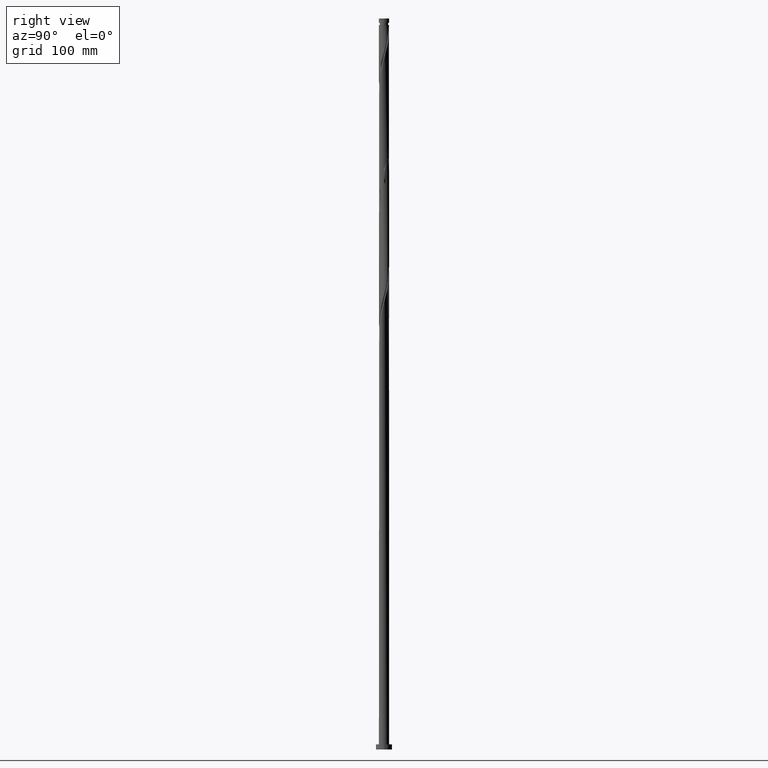
[diagram: clean part render]
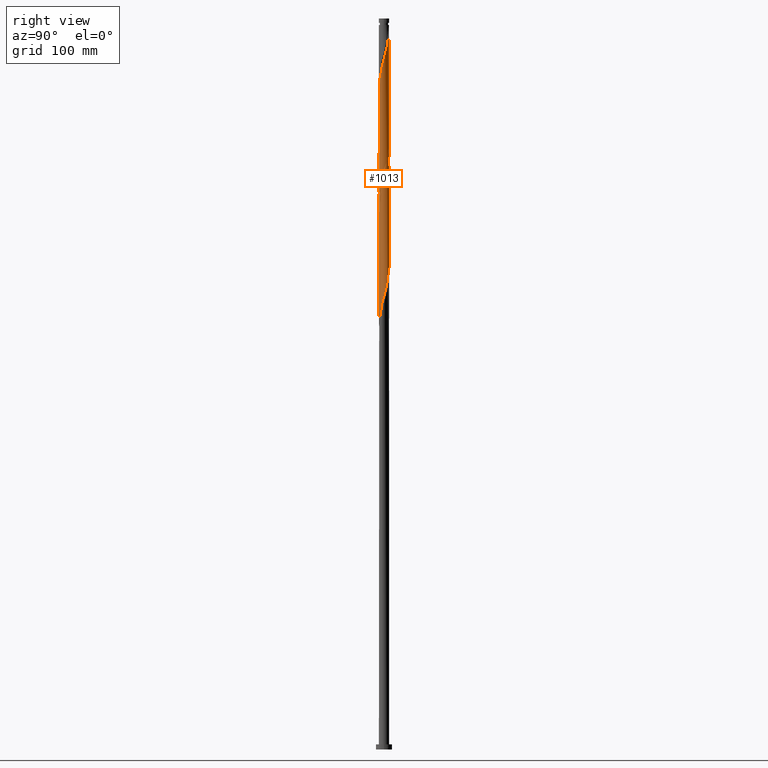
[diagram: same view with one face highlighted and labeled with its STEP entity id]
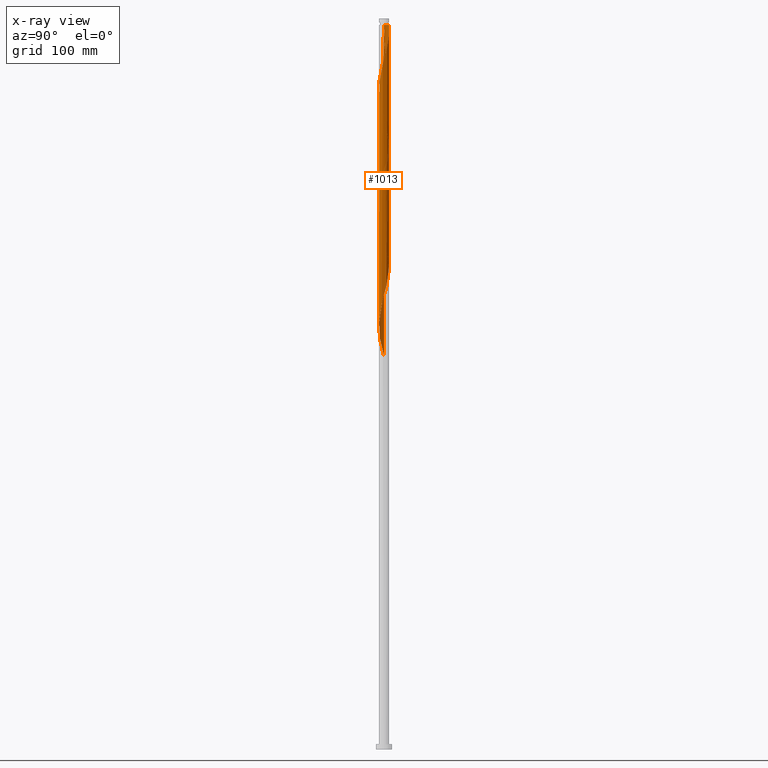
[diagram: x-ray of the same camera — body ghosted, the highlighted face saturated]
A machine part, right view. The second image highlights one B-rep face of the part: STEP entity #1013.
The next image is the same camera in x-ray: the body ghosted, the highlighted face saturated — about 0% of this face is hidden behind the body in this view.
In plain terms, the highlighted cylindrical surface (bore or boss wall) has radius 7 mm, axis along (-0, -0, -1).
Its self-contained STEP definition (entity closure, byte-faithful):
#1 = CARTESIAN_POINT ( 'NONE',  ( -6.999999999999999112, -8.657164945486632062E-15, 538.1220534003106195 ) ) ;
#7 = EDGE_CURVE ( 'NONE', #662, #588, #1312, .T. ) ;
#12 = VECTOR ( 'NONE', #1970, 1000.000000000000000 ) ;
#14 = CARTESIAN_POINT ( 'NONE',  ( -3.406482524289222269, 6.139982148663825079, 843.2254418615293616 ) ) ;
#26 = CARTESIAN_POINT ( 'NONE',  ( 1.342398573274901308, -6.892131023469289630, 584.8921085281959904 ) ) ;
#36 = DIRECTION ( 'NONE',  ( -1.000000000000000000, 0.000000000000000000, 0.000000000000000000 ) ) ;
#38 = EDGE_CURVE ( 'NONE', #1116, #197, #1712, .T. ) ;
#39 = CARTESIAN_POINT ( 'NONE',  ( 5.159153274858735649, 4.731082062965551671, 807.8087751948627329 ) ) ;
#43 = CARTESIAN_POINT ( 'NONE',  ( 1.342398573274901308, -6.892131023469289630, 751.5587751948627329 ) ) ;
#50 = CARTESIAN_POINT ( 'NONE',  ( 3.444661581381041504, 6.093792463627019096, 816.1421085281958767 ) ) ;
#59 = CARTESIAN_POINT ( 'NONE',  ( 2.965069713458600376, -6.364893209514909778, 914.0587751948625055 ) ) ;
#63 = CARTESIAN_POINT ( 'NONE',  ( 4.786809041376008267, 5.137116231466756666, 809.8921085281958767 ) ) ;
#71 = CARTESIAN_POINT ( 'NONE',  ( -2.905260386594000099, -6.368631099858730771, 891.1421085281961041 ) ) ;
#79 = CARTESIAN_POINT ( 'NONE',  ( 6.750369906602914583, -1.932876120766165107, 780.7254418615291343 ) ) ;
#89 = CARTESIAN_POINT ( 'NONE',  ( 2.905260386593992994, -6.368631099858721889, 757.8087751948626192 ) ) ;
#98 = CARTESIAN_POINT ( 'NONE',  ( 7.000000000000000000, 8.572527594031473190E-16, 991.1421085281959904 ) ) ;
#100 = CARTESIAN_POINT ( 'NONE',  ( -5.822691717739142625, 3.924253449303483077, 689.0587751948627329 ) ) ;
#108 = CARTESIAN_POINT ( 'NONE',  ( -6.954702939942483120, -0.7950515814432361772, 707.8087751948625055 ) ) ;
#121 = CARTESIAN_POINT ( 'NONE',  ( 6.750369906602914583, -1.932876120766165107, 614.0587751948626192 ) ) ;
#128 = VECTOR ( 'NONE', #603, 1000.000000000000000 ) ;
#133 = CARTESIAN_POINT ( 'NONE',  ( 0.8530887031323963754, 6.969630093397080728, 659.8921085281958767 ) ) ;
#143 = CARTESIAN_POINT ( 'NONE',  ( 4.786809041376015372, -5.137116231466765548, 922.3921085281959904 ) ) ;
#145 = CARTESIAN_POINT ( 'NONE',  ( -0.8530887031323972636, -6.969630093397078952, 743.2254418615292479 ) ) ;
#149 = ORIENTED_EDGE ( 'NONE', *, *, #944, .F. ) ;
#157 = CARTESIAN_POINT ( 'NONE',  ( 6.993452474906391991, 0.3026920567604106105, 945.3087751948628465 ) ) ;
#158 = CARTESIAN_POINT ( 'NONE',  ( -4.355531245339747670, -5.479903974602947869, 561.9754418615292479 ) ) ;
#168 = CARTESIAN_POINT ( 'NONE',  ( 4.731082062965563217, 5.159153274858740090, 966.1421085281959904 ) ) ;
#170 = CARTESIAN_POINT ( 'NONE',  ( -2.448972917112379744, -6.557631558058904631, 570.3087751948625055 ) ) ;
#180 = CARTESIAN_POINT ( 'NONE',  ( 6.860000000000009202, 1.392982411949278854, 949.4754418615294753 ) ) ;
#182 = CARTESIAN_POINT ( 'NONE',  ( -6.969630093397078952, 0.8530887031323967085, 868.2254418615292479 ) ) ;
#185 = EDGE_CURVE ( 'NONE', #588, #1044, #1902, .T. ) ;
#193 = CARTESIAN_POINT ( 'NONE',  ( -4.786809041376008267, -5.137116231466755778, 559.8921085281961041 ) ) ;
#197 = VERTEX_POINT ( 'NONE', #719 ) ;
#205 = CARTESIAN_POINT ( 'NONE',  ( 6.093792463627019096, -3.444661581381041504, 607.8087751948626192 ) ) ;
#217 = CARTESIAN_POINT ( 'NONE',  ( 4.355531245339749447, 5.479903974602947869, 811.9754418615291343 ) ) ;
#222 = CARTESIAN_POINT ( 'NONE',  ( 1.873218411086832624, -6.744705537261454609, 753.6421085281959904 ) ) ;
#236 = CARTESIAN_POINT ( 'NONE',  ( 1.932876120766161998, -6.750369906602926129, 909.8921085281957630 ) ) ;
#242 = DIRECTION ( 'NONE',  ( -1.000000000000000000, 0.000000000000000000, 0.000000000000000000 ) ) ;
#251 = CARTESIAN_POINT ( 'NONE',  ( -6.999999999999891642, 0.000000000000000000, 991.1421085281959904 ) ) ;
#253 = CARTESIAN_POINT ( 'NONE',  ( 0.000000000000000000, 0.000000000000000000, 991.1421085281959904 ) ) ;
#255 = EDGE_CURVE ( 'NONE', #372, #588, #2142, .T. ) ;
#258 = CARTESIAN_POINT ( 'NONE',  ( -5.479903974602959416, -4.355531245339752111, 878.6421085281959904 ) ) ;
#261 = CARTESIAN_POINT ( 'NONE',  ( 0.8530887031323963754, 6.969630093397080728, 826.5587751948626192 ) ) ;
#265 = CARTESIAN_POINT ( 'NONE',  ( 4.731082062965551671, -5.159153274858735649, 766.1421085281958767 ) ) ;
#269 = CARTESIAN_POINT ( 'NONE',  ( -2.404038248898770824, -6.597280051053632022, 893.2254418615294753 ) ) ;
#275 = CARTESIAN_POINT ( 'NONE',  ( 3.444661581381041504, 6.093792463627019096, 649.4754418615291343 ) ) ;
#285 = CARTESIAN_POINT ( 'NONE',  ( 6.139982148663825079, 3.406482524289224934, 634.8921085281959904 ) ) ;
#296 = CARTESIAN_POINT ( 'NONE',  ( 6.993452474906378669, -0.3026920567604138301, 620.3087751948625055 ) ) ;
#307 = CARTESIAN_POINT ( 'NONE',  ( -6.744705537261454609, -1.873218411086833513, 711.9754418615291343 ) ) ;
#319 = CARTESIAN_POINT ( 'NONE',  ( -3.865765209376786249, 5.835739828502643611, 678.6421085281957630 ) ) ;
#333 = CARTESIAN_POINT ( 'NONE',  ( -1.932876120766162220, -6.750369906602915471, 572.3921085281958767 ) ) ;
#343 = CARTESIAN_POINT ( 'NONE',  ( -5.479903974602947869, 4.355531245339746782, 853.6421085281959904 ) ) ;
#355 = CARTESIAN_POINT ( 'NONE',  ( -0.8530887031323972636, -6.969630093397078952, 576.5587751948626192 ) ) ;
#368 = CARTESIAN_POINT ( 'NONE',  ( -5.159153274858735649, -4.731082062965551671, 557.8087751948625055 ) ) ;
#372 = VERTEX_POINT ( 'NONE', #1867 ) ;
#380 = CARTESIAN_POINT ( 'NONE',  ( 2.404038248898763719, -6.597280051053624028, 589.0587751948626192 ) ) ;
#392 = CARTESIAN_POINT ( 'NONE',  ( 1.392982411949280408, 6.859999999999999432, 824.4754418615291343 ) ) ;
#403 = CARTESIAN_POINT ( 'NONE',  ( 3.924253449303487518, 5.822691717739139960, 814.0587751948628465 ) ) ;
#413 = CARTESIAN_POINT ( 'NONE',  ( 1.392982411949279298, -6.860000000000009202, 907.8087751948627329 ) ) ;
#417 = FACE_OUTER_BOUND ( 'NONE', #2144, .T. ) ;
#419 = CARTESIAN_POINT ( 'NONE',  ( 1.932876120766165773, 6.750369906602914583, 822.3921085281959904 ) ) ;
#429 = CARTESIAN_POINT ( 'NONE',  ( 5.531497508341465696, 4.325047894464346676, 805.7254418615293616 ) ) ;
#433 = CARTESIAN_POINT ( 'NONE',  ( 6.999999999999999112, 6.522726002030445257E-15, 788.1220534003107332 ) ) ;
#439 = CARTESIAN_POINT ( 'NONE',  ( 2.448972917112380632, 6.557631558058904631, 820.3087751948625055 ) ) ;
#442 = CARTESIAN_POINT ( 'NONE',  ( 6.093792463627019096, -3.444661581381041504, 774.4754418615292479 ) ) ;
#452 = VECTOR ( 'NONE', #921, 1000.000000000000000 ) ;
#453 = ORIENTED_EDGE ( 'NONE', *, *, #1653, .T. ) ;
#463 = CARTESIAN_POINT ( 'NONE',  ( -1.873218411086833513, 6.744705537261454609, 670.3087751948625055 ) ) ;
#466 = AXIS2_PLACEMENT_3D ( 'NONE', #2197, #1111, #36 ) ;
#474 = CARTESIAN_POINT ( 'NONE',  ( 6.954702939942483120, 0.7950515814432355111, 624.4754418615292479 ) ) ;
#484 = CARTESIAN_POINT ( 'NONE',  ( -0.3026920567604101664, 6.993452474906391991, 986.9754418615293616 ) ) ;
#485 = CARTESIAN_POINT ( 'NONE',  ( -6.364893209514898231, 2.965069713458598599, 693.2254418615292479 ) ) ;
#494 = CARTESIAN_POINT ( 'NONE',  ( 5.835739828502643611, 3.865765209376785361, 636.9754418615291343 ) ) ;
#506 = CARTESIAN_POINT ( 'NONE',  ( -3.444661581381041504, -6.093792463627019096, 566.1421085281959904 ) ) ;
#515 = CARTESIAN_POINT ( 'NONE',  ( 7.017274856415689044, -0.2477045896115713242, 943.2254418615293616 ) ) ;
#518 = CARTESIAN_POINT ( 'NONE',  ( -6.993452474906378669, 0.3026920567604127754, 870.3087751948626192 ) ) ;
#528 = CARTESIAN_POINT ( 'NONE',  ( 3.406482524289233371, 6.139982148663830408, 972.3921085281957630 ) ) ;
#530 = CARTESIAN_POINT ( 'NONE',  ( 6.557631558058904631, -2.448972917112380632, 611.9754418615291343 ) ) ;
#542 = CARTESIAN_POINT ( 'NONE',  ( -6.368631099858721889, -2.905260386593992994, 549.4754418615292479 ) ) ;
#552 = CARTESIAN_POINT ( 'NONE',  ( -5.822691717739142625, 3.924253449303483077, 855.7254418615292479 ) ) ;
#588 = VERTEX_POINT ( 'NONE', #1135 ) ;
#593 = CARTESIAN_POINT ( 'NONE',  ( 3.924253449303487518, -5.822691717739153283, 918.2254418615293616 ) ) ;
#603 = DIRECTION ( 'NONE',  ( -0.000000000000000000, -0.000000000000000000, -1.000000000000000000 ) ) ;
#625 = CARTESIAN_POINT ( 'NONE',  ( 5.822691717739139960, -3.924253449303487518, 772.3921085281961041 ) ) ;
#637 = CARTESIAN_POINT ( 'NONE',  ( -1.932876120766162220, -6.750369906602915471, 739.0587751948627329 ) ) ;
#646 = CARTESIAN_POINT ( 'NONE',  ( -6.093792463627019096, 3.444661581381040172, 691.1421085281957630 ) ) ;
#658 = CARTESIAN_POINT ( 'NONE',  ( -0.3026920567604134416, -6.993452474906378669, 745.3087751948625055 ) ) ;
#662 = VERTEX_POINT ( 'NONE', #98 ) ;
#669 = CARTESIAN_POINT ( 'NONE',  ( 6.969630093397093162, 0.8530887031323923786, 947.3921085281961041 ) ) ;
#671 = CARTESIAN_POINT ( 'NONE',  ( -0.2477045896115717960, 7.017274856415677498, 664.0587751948625055 ) ) ;
#683 = CARTESIAN_POINT ( 'NONE',  ( -6.368631099858721889, -2.905260386593992994, 716.1421085281958767 ) ) ;
#686 = CARTESIAN_POINT ( 'NONE',  ( -7.000000000000000000, 0.000000000000000000, 1000.000000000000000 ) ) ;
#695 = CARTESIAN_POINT ( 'NONE',  ( 3.865765209376795575, 5.835739828502651605, 970.3087751948627329 ) ) ;
#699 = CARTESIAN_POINT ( 'NONE',  ( -7.000000000000012434, -1.820989867843727658E-15, 860.8288303227481038 ) ) ;
#708 = CARTESIAN_POINT ( 'NONE',  ( 5.137116231466758443, -4.786809041376008267, 601.5587751948625055 ) ) ;
#719 = CARTESIAN_POINT ( 'NONE',  ( -1.392982411949267973, 6.859999999999908837, 991.1421085281959904 ) ) ;
#732 = CARTESIAN_POINT ( 'NONE',  ( -2.905260386593994326, 6.368631099858721889, 841.1421085281958767 ) ) ;
#742 = CARTESIAN_POINT ( 'NONE',  ( 0.2477045896115707968, -7.017274856415678386, 580.7254418615292479 ) ) ;
#755 = CARTESIAN_POINT ( 'NONE',  ( 6.368631099858721889, 2.905260386593992550, 799.4754418615293616 ) ) ;
#759 = CARTESIAN_POINT ( 'NONE',  ( 0.7950515814432359551, -6.954702939942483120, 749.4754418615290206 ) ) ;
#776 = CARTESIAN_POINT ( 'NONE',  ( 3.444661581381044169, -6.093792463627032419, 916.1421085281961041 ) ) ;
#788 = CARTESIAN_POINT ( 'NONE',  ( -1.342398573274906193, -6.892131023469297624, 897.3921085281959904 ) ) ;
#800 = CARTESIAN_POINT ( 'NONE',  ( -4.325047894464358222, -5.531497508341469249, 884.8921085281959904 ) ) ;
#808 = CARTESIAN_POINT ( 'NONE',  ( 2.404038248898763719, -6.597280051053624028, 755.7254418615294753 ) ) ;
#812 = CARTESIAN_POINT ( 'NONE',  ( 0.3026920567604110546, -6.993452474906390215, 903.6421085281957630 ) ) ;
#817 = CARTESIAN_POINT ( 'NONE',  ( 4.786809041376008267, 5.137116231466756666, 643.2254418615291343 ) ) ;
#827 = CARTESIAN_POINT ( 'NONE',  ( -2.965069713458598599, -6.364893209514898231, 734.8921085281959904 ) ) ;
#841 = CARTESIAN_POINT ( 'NONE',  ( -5.835739828502642723, -3.865765209376785361, 720.3087751948623918 ) ) ;
#854 = CARTESIAN_POINT ( 'NONE',  ( -2.905260386593994326, 6.368631099858721889, 674.4754418615291343 ) ) ;
#862 = CARTESIAN_POINT ( 'NONE',  ( 6.954702939942493778, -0.7950515814432402850, 941.1421085281958767 ) ) ;
#864 = CARTESIAN_POINT ( 'NONE',  ( -3.444661581381041504, -6.093792463627019096, 732.8087751948625055 ) ) ;
#875 = CARTESIAN_POINT ( 'NONE',  ( 5.137116231466768212, 4.786809041376013596, 964.0587751948625055 ) ) ;
#876 = CARTESIAN_POINT ( 'NONE',  ( -0.3026920567604134416, -6.993452474906378669, 578.6421085281959904 ) ) ;
#879 = CARTESIAN_POINT ( 'NONE',  ( -6.557631558058917953, -2.448972917112382408, 870.3087751948625055 ) ) ;
#883 = AXIS2_PLACEMENT_3D ( 'NONE', #253, #1323, #242 ) ;
#887 = CARTESIAN_POINT ( 'NONE',  ( 5.159153274858740978, -4.731082062965561441, 924.4754418615294753 ) ) ;
#889 = CARTESIAN_POINT ( 'NONE',  ( -6.954702939942483120, -0.7950515814432361772, 541.1421085281958767 ) ) ;
#899 = CARTESIAN_POINT ( 'NONE',  ( 6.364893209514898231, -2.965069713458595935, 609.8921085281959904 ) ) ;
#911 = CARTESIAN_POINT ( 'NONE',  ( -4.325047894464350229, 5.531497508341461256, 847.3921085281957630 ) ) ;
#917 = EDGE_CURVE ( 'NONE', #1116, #372, #2103, .T. ) ;
#921 = DIRECTION ( 'NONE',  ( -0.000000000000000000, -0.000000000000000000, -1.000000000000000000 ) ) ;
#924 = CARTESIAN_POINT ( 'NONE',  ( 4.325047894464346676, -5.531497508341465696, 597.3921085281957630 ) ) ;
#944 = EDGE_CURVE ( 'NONE', #1256, #197, #1496, .T. ) ;
#957 = CARTESIAN_POINT ( 'NONE',  ( -0.7950515814432369543, 6.954702939942482232, 832.8087751948626192 ) ) ;
#974 = CARTESIAN_POINT ( 'NONE',  ( -1.873218411086838175, -6.744705537261463490, 895.3087751948626192 ) ) ;
#982 = CARTESIAN_POINT ( 'NONE',  ( 4.325047894464346676, -5.531497508341465696, 764.0587751948626192 ) ) ;
#993 = CARTESIAN_POINT ( 'NONE',  ( 2.965069713458596823, 6.364893209514898231, 651.5587751948625055 ) ) ;
#998 = CARTESIAN_POINT ( 'NONE',  ( 0.8530887031323959313, -6.969630093397091386, 905.7254418615291343 ) ) ;
#1002 = CARTESIAN_POINT ( 'NONE',  ( 6.597280051053624028, 2.404038248898761498, 630.7254418615295890 ) ) ;
#1013 = ADVANCED_FACE ( 'NONE', ( #417 ), #1654, .T. ) ;
#1015 = CARTESIAN_POINT ( 'NONE',  ( 6.969630093397080728, -0.8530887031323943770, 618.2254418615291343 ) ) ;
#1026 = CARTESIAN_POINT ( 'NONE',  ( -1.342398573274902196, 6.892131023469287854, 668.2254418615291343 ) ) ;
#1037 = CARTESIAN_POINT ( 'NONE',  ( 6.139982148663832184, -3.406482524289233371, 930.7254418615293616 ) ) ;
#1040 = CARTESIAN_POINT ( 'NONE',  ( 4.355531245339749447, 5.479903974602947869, 645.3087751948623918 ) ) ;
#1044 = VERTEX_POINT ( 'NONE', #2003 ) ;
#1053 = CARTESIAN_POINT ( 'NONE',  ( -1.392982411949279520, -6.859999999999999432, 574.4754418615290206 ) ) ;
#1062 = CARTESIAN_POINT ( 'NONE',  ( 0.7950515814432359551, -6.954702939942483120, 582.8087751948623918 ) ) ;
#1065 = CARTESIAN_POINT ( 'NONE',  ( -6.860000000000009202, -1.392982411949279520, 866.1421085281962178 ) ) ;
#1074 = CARTESIAN_POINT ( 'NONE',  ( 6.368631099858730771, -2.905260386594000099, 932.8087751948627329 ) ) ;
#1075 = CARTESIAN_POINT ( 'NONE',  ( -6.999999999999999112, 3.806167346722570639E-15, 871.4553867336438771 ) ) ;
#1098 = CARTESIAN_POINT ( 'NONE',  ( -1.342398573274902196, 6.892131023469287854, 834.8921085281959904 ) ) ;
#1111 = DIRECTION ( 'NONE',  ( -0.000000000000000000, -0.000000000000000000, -1.000000000000000000 ) ) ;
#1116 = VERTEX_POINT ( 'NONE', #251 ) ;
#1127 = CARTESIAN_POINT ( 'NONE',  ( 6.859999999999999432, -1.392982411949280186, 782.8087751948625055 ) ) ;
#1135 = CARTESIAN_POINT ( 'NONE',  ( 7.000000000000000000, 6.522726002030445257E-15, 788.1220534003107332 ) ) ;
#1146 = CARTESIAN_POINT ( 'NONE',  ( 0.3026920567604124424, 6.993452474906378669, 828.6421085281959904 ) ) ;
#1162 = CARTESIAN_POINT ( 'NONE',  ( 5.479903974602947869, -4.355531245339747670, 770.3087751948627329 ) ) ;
#1176 = CARTESIAN_POINT ( 'NONE',  ( -6.557631558058906407, 2.448972917112379744, 695.3087751948625055 ) ) ;
#1180 = CARTESIAN_POINT ( 'NONE',  ( -0.7950515814432402850, -6.954702939942493778, 899.4754418615293616 ) ) ;
#1187 = CARTESIAN_POINT ( 'NONE',  ( 6.368631099858721889, 2.905260386593992550, 632.8087751948623918 ) ) ;
#1198 = CARTESIAN_POINT ( 'NONE',  ( 7.017274856415678386, 0.2477045896115672163, 622.3921085281958767 ) ) ;
#1211 = CARTESIAN_POINT ( 'NONE',  ( -0.8530887031323919345, 6.969630093397093162, 989.0587751948627329 ) ) ;
#1212 = CARTESIAN_POINT ( 'NONE',  ( -5.137116231466755778, 4.786809041376008267, 684.8921085281958767 ) ) ;
#1221 = CARTESIAN_POINT ( 'NONE',  ( 6.744705537261454609, 1.873218411086832624, 628.6421085281958767 ) ) ;
#1230 = CARTESIAN_POINT ( 'NONE',  ( 4.355531245339751223, -5.479903974602959416, 920.3087751948626192 ) ) ;
#1233 = CARTESIAN_POINT ( 'NONE',  ( -7.000000000000001776, -0.3988161621250091993, 539.6339419186554096 ) ) ;
#1241 = CARTESIAN_POINT ( 'NONE',  ( -6.364893209514898231, 2.965069713458598599, 859.8921085281959904 ) ) ;
#1244 = CARTESIAN_POINT ( 'NONE',  ( -6.750369906602926129, -1.932876120766162442, 868.2254418615291343 ) ) ;
#1252 = CARTESIAN_POINT ( 'NONE',  ( 0.2477045896115715462, 7.017274856415689044, 984.8921085281961041 ) ) ;
#1253 = CARTESIAN_POINT ( 'NONE',  ( 1.873218411086832624, -6.744705537261454609, 586.9754418615291343 ) ) ;
#1256 = VERTEX_POINT ( 'NONE', #1620 ) ;
#1265 = CARTESIAN_POINT ( 'NONE',  ( -6.859999999999999432, 1.392982411949279076, 866.1421085281959904 ) ) ;
#1274 = CARTESIAN_POINT ( 'NONE',  ( -1.873218411086833513, 6.744705537261454609, 836.9754418615292479 ) ) ;
#1284 = CARTESIAN_POINT ( 'NONE',  ( 6.892131023469286966, 1.342398573274904860, 793.2254418615294753 ) ) ;
#1308 = CARTESIAN_POINT ( 'NONE',  ( 5.835739828502643611, 3.865765209376785361, 803.6421085281961041 ) ) ;
#1312 = LINE ( 'NONE', #1860, #128 ) ;
#1323 = DIRECTION ( 'NONE',  ( -0.000000000000000000, -0.000000000000000000, -1.000000000000000000 ) ) ;
#1336 = CARTESIAN_POINT ( 'NONE',  ( 6.557631558058904631, -2.448972917112380632, 778.6421085281958767 ) ) ;
#1345 = CARTESIAN_POINT ( 'NONE',  ( 3.406482524289221825, -6.139982148663825079, 759.8921085281961041 ) ) ;
#1355 = CARTESIAN_POINT ( 'NONE',  ( -0.7950515814432369543, 6.954702939942482232, 666.1421085281958767 ) ) ;
#1368 = CARTESIAN_POINT ( 'NONE',  ( -4.325047894464350229, 5.531497508341461256, 680.7254418615293616 ) ) ;
#1377 = CARTESIAN_POINT ( 'NONE',  ( -4.786809041376008267, -5.137116231466755778, 726.5587751948625055 ) ) ;
#1389 = CARTESIAN_POINT ( 'NONE',  ( 5.531497508341469249, -4.325047894464359111, 926.5587751948625055 ) ) ;
#1392 = CARTESIAN_POINT ( 'NONE',  ( 2.448972917112380632, 6.557631558058904631, 653.6421085281958767 ) ) ;
#1402 = CARTESIAN_POINT ( 'NONE',  ( 6.750369906602925241, 1.932876120766165329, 951.5587751948627329 ) ) ;
#1405 = CARTESIAN_POINT ( 'NONE',  ( -7.017274856415678386, -0.2477045896115712409, 705.7254418615294753 ) ) ;
#1415 = CARTESIAN_POINT ( 'NONE',  ( 2.905260386594000543, 6.368631099858730771, 974.4754418615292479 ) ) ;
#1416 = CARTESIAN_POINT ( 'NONE',  ( -7.000000000000000000, 0.1514168430644773633, 870.8813744235775403 ) ) ;
#1419 = CARTESIAN_POINT ( 'NONE',  ( -6.993452474906391991, -0.3026920567604114432, 861.9754418615293616 ) ) ;
#1426 = CARTESIAN_POINT ( 'NONE',  ( -7.000000000000000000, 0.000000000000000000, 1000.000000000000000 ) ) ;
#1428 = CARTESIAN_POINT ( 'NONE',  ( 1.342398573274909968, 6.892131023469296736, 980.7254418615292479 ) ) ;
#1429 = CARTESIAN_POINT ( 'NONE',  ( -6.139982148663825079, -3.406482524289222269, 551.5587751948627329 ) ) ;
#1453 = CARTESIAN_POINT ( 'NONE',  ( -6.597280051053624028, -2.404038248898764607, 547.3921085281959904 ) ) ;
#1466 = CARTESIAN_POINT ( 'NONE',  ( -2.965069713458598599, -6.364893209514898231, 568.2254418615294753 ) ) ;
#1477 = CARTESIAN_POINT ( 'NONE',  ( 7.000000000000000000, 0.3988161621250255751, 789.6339419186556370 ) ) ;
#1481 = ORIENTED_EDGE ( 'NONE', *, *, #917, .F. ) ;
#1496 =( BOUNDED_CURVE ( )  B_SPLINE_CURVE ( 2, ( #699, #1790, #1419, #2141, #1065, #1244, #879, #1599, #2316, #2066, #258, #2230, #1720, #800, #1687, #2032, #71, #269, #974, #788, #1180, #2207, #812, #998, #413, #236, #1675, #59, #776, #593, #1230, #143, #887, #1389, #2286, #1037, #1074, #2111, #2298, #2136, #862, #515, #157, #669, #180, #1402, #1771, #1965, #1953, #1784, #1594, #875, #168, #2312, #695, #528, #1415, #1606, #2323, #1428, #2150, #1252, #484, #1211, #1943 ),
 .UNSPECIFIED., .F., .T. ) 
 B_SPLINE_CURVE_WITH_KNOTS ( ( 3, 2, 2, 2, 2, 2, 2, 2, 2, 2, 2, 2, 2, 2, 2, 2, 2, 2, 2, 2, 2, 2, 2, 2, 2, 2, 2, 2, 2, 2, 2, 2, 3 ),
 ( 0.5545283537410735653, 0.5562500000000000222, 0.5625000000000000000, 0.5687499999999999778, 0.5749999999999999556, 0.5812500000000000444, 0.5875000000000000222, 0.5937500000000000000, 0.5999999999999999778, 0.6062499999999999556, 0.6125000000000000444, 0.6187500000000000222, 0.6250000000000000000, 0.6312499999999999778, 0.6374999999999999556, 0.6437500000000000444, 0.6500000000000000222, 0.6562500000000000000, 0.6624999999999999778, 0.6687499999999999556, 0.6750000000000000444, 0.6812500000000000222, 0.6875000000000000000, 0.6937499999999999778, 0.6999999999999999556, 0.7062500000000000444, 0.7125000000000000222, 0.7187500000000000000, 0.7249999999999999778, 0.7312499999999999556, 0.7375000000000000444, 0.7437500000000000222, 0.7500000000000000000 ),
 .UNSPECIFIED. ) 
 CURVE ( )  GEOMETRIC_REPRESENTATION_ITEM ( )  RATIONAL_B_SPLINE_CURVE ( ( 0.9079722749903216261, 0.9083189438770319368, 0.9090909090909780055, 0.9062884852120033363, 0.9090909090909780055, 0.9062884852120033363, 0.9090909090909780055, 0.9062884852120033363, 0.9090909090909780055, 0.9062884852120033363, 0.9090909090909780055, 0.9062884852120033363, 0.9090909090909780055, 0.9062884852120033363, 0.9090909090909780055, 0.9062884852120033363, 0.9090909090909780055, 0.9062884852120033363, 0.9090909090909780055, 0.9062884852120033363, 0.9090909090909780055, 0.9062884852120033363, 0.9090909090909780055, 0.9062884852120033363, 0.9090909090909780055, 0.9062884852120033363, 0.9090909090909780055, 0.9062884852120033363, 0.9090909090909780055, 0.9062884852120033363, 0.9090909090909780055, 0.9062884852120033363, 0.9090909090909780055, 0.9062884852120033363, 0.9090909090909780055, 0.9062884852120033363, 0.9090909090909780055, 0.9062884852120033363, 0.9090909090909780055, 0.9062884852120033363, 0.9090909090909780055, 0.9062884852120033363, 0.9090909090909780055, 0.9062884852120033363, 0.9090909090909780055, 0.9062884852120033363, 0.9090909090909780055, 0.9062884852120033363, 0.9090909090909780055, 0.9062884852120033363, 0.9090909090909780055, 0.9062884852120033363, 0.9090909090909780055, 0.9062884852120033363, 0.9090909090909780055, 0.9062884852120033363, 0.9090909090909780055, 0.9062884852120033363, 0.9090909090909780055, 0.9062884852120033363, 0.9090909090909780055, 0.9062884852120033363, 0.9090909090909780055, 0.9062884852120033363, 0.9090909090909780055 ) ) 
 REPRESENTATION_ITEM ( '' )  );
#1505 = CARTESIAN_POINT ( 'NONE',  ( 7.000000000000000888, -0.1514168430644582397, 787.5480410902445101 ) ) ;
#1535 = CARTESIAN_POINT ( 'NONE',  ( 6.892131023469286966, 1.342398573274904860, 626.5587751948626192 ) ) ;
#1545 = CARTESIAN_POINT ( 'NONE',  ( 1.392982411949280408, 6.859999999999999432, 657.8087751948627329 ) ) ;
#1556 = CARTESIAN_POINT ( 'NONE',  ( -2.404038248898764607, 6.597280051053624028, 672.3921085281959904 ) ) ;
#1568 = CARTESIAN_POINT ( 'NONE',  ( -5.159153274858735649, -4.731082062965551671, 724.4754418615293616 ) ) ;
#1583 = CARTESIAN_POINT ( 'NONE',  ( -5.531497508341463032, -4.325047894464350229, 722.3921085281959904 ) ) ;
#1594 = CARTESIAN_POINT ( 'NONE',  ( 5.479903974602959416, 4.355531245339751223, 961.9754418615294753 ) ) ;
#1596 = CARTESIAN_POINT ( 'NONE',  ( -6.744705537261454609, -1.873218411086833513, 545.3087751948625055 ) ) ;
#1599 = CARTESIAN_POINT ( 'NONE',  ( -6.364893209514909778, -2.965069713458600820, 872.3921085281958767 ) ) ;
#1606 = CARTESIAN_POINT ( 'NONE',  ( 2.404038248898769048, 6.597280051053632022, 976.5587751948627329 ) ) ;
#1608 = CARTESIAN_POINT ( 'NONE',  ( -6.892131023469287854, -1.342398573274901752, 543.2254418615293616 ) ) ;
#1620 = CARTESIAN_POINT ( 'NONE',  ( -7.000000000000012434, -1.820989867843727658E-15, 860.8288303227481038 ) ) ;
#1621 = CARTESIAN_POINT ( 'NONE',  ( 5.479903974602947869, -4.355531245339747670, 603.6421085281957630 ) ) ;
#1632 = CARTESIAN_POINT ( 'NONE',  ( -3.865765209376786249, 5.835739828502643611, 845.3087751948626192 ) ) ;
#1644 = CARTESIAN_POINT ( 'NONE',  ( 2.905260386593992994, -6.368631099858721889, 591.1421085281957630 ) ) ;
#1653 = EDGE_CURVE ( 'NONE', #1256, #1044, #1725, .T. ) ;
#1654 = CYLINDRICAL_SURFACE ( 'NONE', #466, 7.000000000000000000 ) ;
#1655 = CARTESIAN_POINT ( 'NONE',  ( -0.2477045896115717960, 7.017274856415677498, 830.7254418615293616 ) ) ;
#1675 = CARTESIAN_POINT ( 'NONE',  ( 2.448972917112381964, -6.557631558058917953, 911.9754418615295890 ) ) ;
#1687 = CARTESIAN_POINT ( 'NONE',  ( -3.865765209376794687, -5.835739828502651605, 886.9754418615291343 ) ) ;
#1705 = CARTESIAN_POINT ( 'NONE',  ( 3.865765209376785361, -5.835739828502643611, 761.9754418615292479 ) ) ;
#1712 = CIRCLE ( 'NONE', #883, 6.999999999999891642 ) ;
#1716 = CARTESIAN_POINT ( 'NONE',  ( 3.924253449303487518, 5.822691717739139960, 647.3921085281959904 ) ) ;
#1720 = CARTESIAN_POINT ( 'NONE',  ( -4.731082062965561441, -5.159153274858740978, 882.8087751948626192 ) ) ;
#1725 = LINE ( 'NONE', #1426, #452 ) ;
#1729 = CARTESIAN_POINT ( 'NONE',  ( -2.448972917112379744, -6.557631558058904631, 736.9754418615291343 ) ) ;
#1738 = CARTESIAN_POINT ( 'NONE',  ( 6.859999999999999432, -1.392982411949280186, 616.1421085281957630 ) ) ;
#1749 = CARTESIAN_POINT ( 'NONE',  ( -6.969630093397078952, 0.8530887031323967085, 701.5587751948626192 ) ) ;
#1761 = CARTESIAN_POINT ( 'NONE',  ( -3.406482524289222269, 6.139982148663825079, 676.5587751948625055 ) ) ;
#1771 = CARTESIAN_POINT ( 'NONE',  ( 6.557631558058917953, 2.448972917112381520, 953.6421085281961041 ) ) ;
#1773 = CARTESIAN_POINT ( 'NONE',  ( -3.924253449303483077, -5.822691717739142625, 564.0587751948627329 ) ) ;
#1784 = CARTESIAN_POINT ( 'NONE',  ( 5.822691717739150619, 3.924253449303489294, 959.8921085281961041 ) ) ;
#1786 = CARTESIAN_POINT ( 'NONE',  ( -5.531497508341463032, -4.325047894464350229, 555.7254418615292479 ) ) ;
#1790 = CARTESIAN_POINT ( 'NONE',  ( -7.000000000000010658, -0.1514168430644743657, 861.4028426328143269 ) ) ;
#1791 = ORIENTED_EDGE ( 'NONE', *, *, #255, .F. ) ;
#1813 = CARTESIAN_POINT ( 'NONE',  ( -6.093792463627019096, 3.444661581381040172, 857.8087751948625055 ) ) ;
#1824 = CARTESIAN_POINT ( 'NONE',  ( 5.822691717739139960, -3.924253449303487518, 605.7254418615292479 ) ) ;
#1834 = CARTESIAN_POINT ( 'NONE',  ( 2.965069713458596823, 6.364893209514898231, 818.2254418615295890 ) ) ;
#1857 = CARTESIAN_POINT ( 'NONE',  ( 6.954702939942483120, 0.7950515814432355111, 791.1421085281959904 ) ) ;
#1860 = CARTESIAN_POINT ( 'NONE',  ( 7.000000000000000000, 8.572527594031473190E-16, 1000.000000000000000 ) ) ;
#1867 = CARTESIAN_POINT ( 'NONE',  ( -7.000000000000000000, 3.806167346722570639E-15, 871.4553867336438771 ) ) ;
#1877 = CARTESIAN_POINT ( 'NONE',  ( 6.139982148663825079, 3.406482524289224934, 801.5587751948627329 ) ) ;
#1880 = CARTESIAN_POINT ( 'NONE',  ( 5.137116231466758443, -4.786809041376008267, 768.2254418615292479 ) ) ;
#1895 = CARTESIAN_POINT ( 'NONE',  ( 0.3026920567604124424, 6.993452474906378669, 661.9754418615291343 ) ) ;
#1902 =( BOUNDED_CURVE ( )  B_SPLINE_CURVE ( 2, ( #433, #1505, #2237, #2226, #1127, #79, #1336, #2062, #442, #625, #1162, #1880, #265, #982, #1705, #1345, #89, #808, #222, #43, #759, #2203, #658, #145, #2258, #637, #1729, #827, #864, #2267, #2300, #1377, #1568, #1583, #841, #1944, #683, #2289, #307, #2277, #108, #1405, #2126, #1749, #2100, #1917, #1176, #485, #646, #100, #2091, #1212, #1931, #1368, #319, #1761, #854, #1556, #463, #1026, #1355, #671, #1895, #133, #1545, #2083, #1392, #993, #275, #1716, #1040, #817, #1907, #2114, #494, #285, #1187, #1002, #1221, #1535, #474, #1198, #296, #1015, #1738, #121, #530, #899, #205, #1824, #1621, #708, #1955, #924, #2162, #2138, #1644, #380, #1253, #26, #1062, #742, #876, #355, #1053, #333, #170, #1466, #506, #1773, #158, #193, #368, #1786, #1967, #1429, #542, #1453, #1596, #1608, #889, #1233, #1 ),
 .UNSPECIFIED., .F., .T. ) 
 B_SPLINE_CURVE_WITH_KNOTS ( ( 3, 2, 2, 2, 2, 2, 2, 2, 2, 2, 2, 2, 2, 2, 2, 2, 2, 2, 2, 2, 2, 2, 2, 2, 2, 2, 2, 2, 2, 2, 2, 2, 2, 2, 2, 2, 2, 2, 2, 2, 2, 2, 2, 2, 2, 2, 2, 2, 2, 2, 2, 2, 2, 2, 2, 2, 2, 2, 2, 2, 2, 3 ),
 ( 0.5545283537410733432, 0.5562500000000000222, 0.5625000000000000000, 0.5687499999999999778, 0.5749999999999999556, 0.5812500000000000444, 0.5875000000000000222, 0.5937500000000000000, 0.5999999999999999778, 0.6062499999999999556, 0.6125000000000000444, 0.6187500000000000222, 0.6250000000000000000, 0.6312499999999999778, 0.6374999999999999556, 0.6437500000000000444, 0.6500000000000000222, 0.6562500000000000000, 0.6624999999999999778, 0.6687499999999999556, 0.6750000000000000444, 0.6812500000000000222, 0.6875000000000000000, 0.6937499999999999778, 0.6999999999999999556, 0.7062500000000000444, 0.7125000000000000222, 0.7187500000000000000, 0.7249999999999999778, 0.7312499999999999556, 0.7375000000000000444, 0.7437500000000000222, 0.7500000000000000000, 0.7562499999999999778, 0.7624999999999999556, 0.7687500000000000444, 0.7750000000000000222, 0.7812500000000000000, 0.7874999999999999778, 0.7937499999999999556, 0.8000000000000000444, 0.8062500000000000222, 0.8125000000000000000, 0.8187499999999999778, 0.8249999999999999556, 0.8312500000000000444, 0.8375000000000000222, 0.8437500000000000000, 0.8499999999999999778, 0.8562499999999999556, 0.8625000000000000444, 0.8687500000000000222, 0.8750000000000000000, 0.8812499999999999778, 0.8874999999999999556, 0.8937500000000000444, 0.9000000000000000222, 0.9062500000000000000, 0.9124999999999999778, 0.9187499999999999556, 0.9250000000000000444, 0.9295283537410735653 ),
 .UNSPECIFIED. ) 
 CURVE ( )  GEOMETRIC_REPRESENTATION_ITEM ( )  RATIONAL_B_SPLINE_CURVE ( ( 0.9079722749903154089, 0.9083189438770257196, 0.9090909090909720103, 0.9062884852119970081, 0.9090909090909720103, 0.9062884852119970081, 0.9090909090909720103, 0.9062884852119970081, 0.9090909090909720103, 0.9062884852119970081, 0.9090909090909720103, 0.9062884852119970081, 0.9090909090909720103, 0.9062884852119970081, 0.9090909090909720103, 0.9062884852119970081, 0.9090909090909720103, 0.9062884852119970081, 0.9090909090909720103, 0.9062884852119970081, 0.9090909090909720103, 0.9062884852119970081, 0.9090909090909720103, 0.9062884852119970081, 0.9090909090909720103, 0.9062884852119970081, 0.9090909090909720103, 0.9062884852119970081, 0.9090909090909720103, 0.9062884852119970081, 0.9090909090909720103, 0.9062884852119970081, 0.9090909090909720103, 0.9062884852119970081, 0.9090909090909720103, 0.9062884852119970081, 0.9090909090909720103, 0.9062884852119970081, 0.9090909090909720103, 0.9062884852119970081, 0.9090909090909720103, 0.9062884852119970081, 0.9090909090909720103, 0.9062884852119970081, 0.9090909090909720103, 0.9062884852119970081, 0.9090909090909720103, 0.9062884852119970081, 0.9090909090909720103, 0.9062884852119970081, 0.9090909090909720103, 0.9062884852119970081, 0.9090909090909720103, 0.9062884852119970081, 0.9090909090909720103, 0.9062884852119970081, 0.9090909090909720103, 0.9062884852119970081, 0.9090909090909720103, 0.9062884852119970081, 0.9090909090909720103, 0.9062884852119970081, 0.9090909090909720103, 0.9062884852119970081, 0.9090909090909720103, 0.9062884852119970081, 0.9090909090909720103, 0.9062884852119970081, 0.9090909090909720103, 0.9062884852119970081, 0.9090909090909720103, 0.9062884852119970081, 0.9090909090909720103, 0.9062884852119970081, 0.9090909090909720103, 0.9062884852119970081, 0.9090909090909720103, 0.9062884852119970081, 0.9090909090909720103, 0.9062884852119970081, 0.9090909090909720103, 0.9062884852119970081, 0.9090909090909720103, 0.9062884852119970081, 0.9090909090909720103, 0.9062884852119970081, 0.9090909090909720103, 0.9062884852119970081, 0.9090909090909720103, 0.9062884852119970081, 0.9090909090909720103, 0.9062884852119970081, 0.9090909090909720103, 0.9062884852119970081, 0.9090909090909720103, 0.9062884852119970081, 0.9090909090909720103, 0.9062884852119970081, 0.9090909090909720103, 0.9062884852119970081, 0.9090909090909720103, 0.9062884852119970081, 0.9090909090909720103, 0.9062884852119970081, 0.9090909090909720103, 0.9062884852119970081, 0.9090909090909720103, 0.9062884852119970081, 0.9090909090909720103, 0.9062884852119970081, 0.9090909090909720103, 0.9062884852119970081, 0.9090909090909720103, 0.9062884852119970081, 0.9090909090909720103, 0.9062884852119970081, 0.9090909090909720103, 0.9062884852119970081, 0.9090909090909720103, 0.9062884852119970081, 0.9090909090909720103, 0.9070604504259431877, 0.9079722749903154089 ) ) 
 REPRESENTATION_ITEM ( '' )  );
#1907 = CARTESIAN_POINT ( 'NONE',  ( 5.159153274858735649, 4.731082062965551671, 641.1421085281959904 ) ) ;
#1917 = CARTESIAN_POINT ( 'NONE',  ( -6.750369906602915471, 1.932876120766161554, 697.3921085281962178 ) ) ;
#1931 = CARTESIAN_POINT ( 'NONE',  ( -4.731082062965552559, 5.159153274858735649, 682.8087751948626192 ) ) ;
#1943 = CARTESIAN_POINT ( 'NONE',  ( -1.392982411949267973, 6.859999999999909726, 991.1421085281959904 ) ) ;
#1944 = CARTESIAN_POINT ( 'NONE',  ( -6.139982148663825079, -3.406482524289222269, 718.2254418615290206 ) ) ;
#1953 = CARTESIAN_POINT ( 'NONE',  ( 6.093792463627032419, 3.444661581381044169, 957.8087751948626192 ) ) ;
#1955 = CARTESIAN_POINT ( 'NONE',  ( 4.731082062965551671, -5.159153274858735649, 599.4754418615292479 ) ) ;
#1965 = CARTESIAN_POINT ( 'NONE',  ( 6.364893209514911554, 2.965069713458597267, 955.7254418615291343 ) ) ;
#1967 = CARTESIAN_POINT ( 'NONE',  ( -5.835739828502642723, -3.865765209376785361, 553.6421085281959904 ) ) ;
#1970 = DIRECTION ( 'NONE',  ( -0.000000000000000000, -0.000000000000000000, -1.000000000000000000 ) ) ;
#1977 = CARTESIAN_POINT ( 'NONE',  ( -6.557631558058906407, 2.448972917112379744, 861.9754418615293616 ) ) ;
#1993 = CARTESIAN_POINT ( 'NONE',  ( -6.750369906602915471, 1.932876120766161554, 864.0587751948626192 ) ) ;
#2003 = CARTESIAN_POINT ( 'NONE',  ( -7.000000000000000000, -8.657164945486632062E-15, 538.1220534003106195 ) ) ;
#2032 = CARTESIAN_POINT ( 'NONE',  ( -3.406482524289230263, -6.139982148663833073, 889.0587751948625055 ) ) ;
#2048 = CARTESIAN_POINT ( 'NONE',  ( 6.597280051053624028, 2.404038248898761498, 797.3921085281961041 ) ) ;
#2051 = ORIENTED_EDGE ( 'NONE', *, *, #7, .T. ) ;
#2062 = CARTESIAN_POINT ( 'NONE',  ( 6.364893209514898231, -2.965069713458595935, 776.5587751948626192 ) ) ;
#2066 = CARTESIAN_POINT ( 'NONE',  ( -5.822691717739151507, -3.924253449303487518, 876.5587751948625055 ) ) ;
#2083 = CARTESIAN_POINT ( 'NONE',  ( 1.932876120766165773, 6.750369906602914583, 655.7254418615291343 ) ) ;
#2091 = CARTESIAN_POINT ( 'NONE',  ( -5.479903974602947869, 4.355531245339746782, 686.9754418615291343 ) ) ;
#2100 = CARTESIAN_POINT ( 'NONE',  ( -6.859999999999999432, 1.392982411949279076, 699.4754418615291343 ) ) ;
#2103 = LINE ( 'NONE', #686, #12 ) ;
#2104 = ORIENTED_EDGE ( 'NONE', *, *, #38, .T. ) ;
#2111 = CARTESIAN_POINT ( 'NONE',  ( 6.597280051053632022, -2.404038248898768160, 934.8921085281958767 ) ) ;
#2114 = CARTESIAN_POINT ( 'NONE',  ( 5.531497508341465696, 4.325047894464346676, 639.0587751948626192 ) ) ;
#2126 = CARTESIAN_POINT ( 'NONE',  ( -6.993452474906378669, 0.3026920567604127754, 703.6421085281958767 ) ) ;
#2136 = CARTESIAN_POINT ( 'NONE',  ( 6.892131023469296736, -1.342398573274909968, 939.0587751948627329 ) ) ;
#2138 = CARTESIAN_POINT ( 'NONE',  ( 3.406482524289221825, -6.139982148663825079, 593.2254418615292479 ) ) ;
#2141 = CARTESIAN_POINT ( 'NONE',  ( -6.969630093397091386, -0.8530887031323962644, 864.0587751948627329 ) ) ;
#2142 =( BOUNDED_CURVE ( )  B_SPLINE_CURVE ( 2, ( #1075, #1416, #518, #182, #1265, #1993, #1977, #1241, #1813, #552, #343, #2324, #2152, #911, #1632, #14, #732, #2175, #1274, #1098, #957, #1655, #1146, #261, #392, #419, #439, #1834, #50, #403, #217, #63, #39, #429, #1308, #1877, #755, #2048, #2187, #1284, #1857, #1477, #2221 ),
 .UNSPECIFIED., .F., .T. ) 
 B_SPLINE_CURVE_WITH_KNOTS ( ( 3, 2, 2, 2, 2, 2, 2, 2, 2, 2, 2, 2, 2, 2, 2, 2, 2, 2, 2, 2, 2, 3 ),
 ( 0.4295283537410735653, 0.4312500000000000222, 0.4375000000000000000, 0.4437499999999999778, 0.4500000000000000111, 0.4562499999999999889, 0.4625000000000000222, 0.4687500000000000000, 0.4749999999999999778, 0.4812500000000000111, 0.4874999999999999889, 0.4937500000000000222, 0.5000000000000000000, 0.5062499999999999778, 0.5124999999999999556, 0.5187500000000000444, 0.5250000000000000222, 0.5312500000000000000, 0.5374999999999999778, 0.5437499999999999556, 0.5500000000000000444, 0.5545283537410733432 ),
 .UNSPECIFIED. ) 
 CURVE ( )  GEOMETRIC_REPRESENTATION_ITEM ( )  RATIONAL_B_SPLINE_CURVE ( ( 0.9079722749903154089, 0.9083189438770258306, 0.9090909090909720103, 0.9062884852119970081, 0.9090909090909720103, 0.9062884852119970081, 0.9090909090909720103, 0.9062884852119970081, 0.9090909090909720103, 0.9062884852119970081, 0.9090909090909720103, 0.9062884852119970081, 0.9090909090909720103, 0.9062884852119970081, 0.9090909090909720103, 0.9062884852119970081, 0.9090909090909720103, 0.9062884852119970081, 0.9090909090909720103, 0.9062884852119970081, 0.9090909090909720103, 0.9062884852119970081, 0.9090909090909720103, 0.9062884852119970081, 0.9090909090909720103, 0.9062884852119970081, 0.9090909090909720103, 0.9062884852119970081, 0.9090909090909720103, 0.9062884852119970081, 0.9090909090909720103, 0.9062884852119970081, 0.9090909090909720103, 0.9062884852119970081, 0.9090909090909720103, 0.9062884852119970081, 0.9090909090909720103, 0.9062884852119970081, 0.9090909090909720103, 0.9062884852119970081, 0.9090909090909720103, 0.9070604504259432987, 0.9079722749903154089 ) ) 
 REPRESENTATION_ITEM ( '' )  );
#2144 = EDGE_LOOP ( 'NONE', ( #1481, #2104, #149, #453, #2280, #2166, #2051, #1791 ) ) ;
#2150 = CARTESIAN_POINT ( 'NONE',  ( 0.7950515814432411732, 6.954702939942493778, 982.8087751948627329 ) ) ;
#2152 = CARTESIAN_POINT ( 'NONE',  ( -4.731082062965552559, 5.159153274858735649, 849.4754418615293616 ) ) ;
#2162 = CARTESIAN_POINT ( 'NONE',  ( 3.865765209376785361, -5.835739828502643611, 595.3087751948627329 ) ) ;
#2166 = ORIENTED_EDGE ( 'NONE', *, *, #7, .F. ) ;
#2175 = CARTESIAN_POINT ( 'NONE',  ( -2.404038248898764607, 6.597280051053624028, 839.0587751948627329 ) ) ;
#2187 = CARTESIAN_POINT ( 'NONE',  ( 6.744705537261454609, 1.873218411086832624, 795.3087751948623918 ) ) ;
#2197 = CARTESIAN_POINT ( 'NONE',  ( 0.000000000000000000, 0.000000000000000000, 1000.000000000000000 ) ) ;
#2203 = CARTESIAN_POINT ( 'NONE',  ( 0.2477045896115707968, -7.017274856415678386, 747.3921085281959904 ) ) ;
#2207 = CARTESIAN_POINT ( 'NONE',  ( -0.2477045896115740997, -7.017274856415688156, 901.5587751948625055 ) ) ;
#2221 = CARTESIAN_POINT ( 'NONE',  ( 6.999999999999999112, 6.522726002030445257E-15, 788.1220534003107332 ) ) ;
#2226 = CARTESIAN_POINT ( 'NONE',  ( 6.969630093397080728, -0.8530887031323943770, 784.8921085281958767 ) ) ;
#2230 = CARTESIAN_POINT ( 'NONE',  ( -5.137116231466765548, -4.786809041376016260, 880.7254418615293616 ) ) ;
#2237 = CARTESIAN_POINT ( 'NONE',  ( 6.993452474906378669, -0.3026920567604138301, 786.9754418615294753 ) ) ;
#2258 = CARTESIAN_POINT ( 'NONE',  ( -1.392982411949279520, -6.859999999999999432, 741.1421085281959904 ) ) ;
#2267 = CARTESIAN_POINT ( 'NONE',  ( -3.924253449303483077, -5.822691717739142625, 730.7254418615293616 ) ) ;
#2277 = CARTESIAN_POINT ( 'NONE',  ( -6.892131023469287854, -1.342398573274901752, 709.8921085281958767 ) ) ;
#2280 = ORIENTED_EDGE ( 'NONE', *, *, #185, .F. ) ;
#2286 = CARTESIAN_POINT ( 'NONE',  ( 5.835739828502651605, -3.865765209376794687, 928.6421085281962178 ) ) ;
#2289 = CARTESIAN_POINT ( 'NONE',  ( -6.597280051053624028, -2.404038248898764607, 714.0587751948628465 ) ) ;
#2298 = CARTESIAN_POINT ( 'NONE',  ( 6.744705537261463490, -1.873218411086838620, 936.9754418615292479 ) ) ;
#2300 = CARTESIAN_POINT ( 'NONE',  ( -4.355531245339747670, -5.479903974602947869, 728.6421085281961041 ) ) ;
#2312 = CARTESIAN_POINT ( 'NONE',  ( 4.325047894464357334, 5.531497508341470137, 968.2254418615292479 ) ) ;
#2316 = CARTESIAN_POINT ( 'NONE',  ( -6.093792463627032419, -3.444661581381044613, 874.4754418615293616 ) ) ;
#2323 = CARTESIAN_POINT ( 'NONE',  ( 1.873218411086839286, 6.744705537261463490, 978.6421085281961041 ) ) ;
#2324 = CARTESIAN_POINT ( 'NONE',  ( -5.137116231466755778, 4.786809041376008267, 851.5587751948626192 ) ) ;